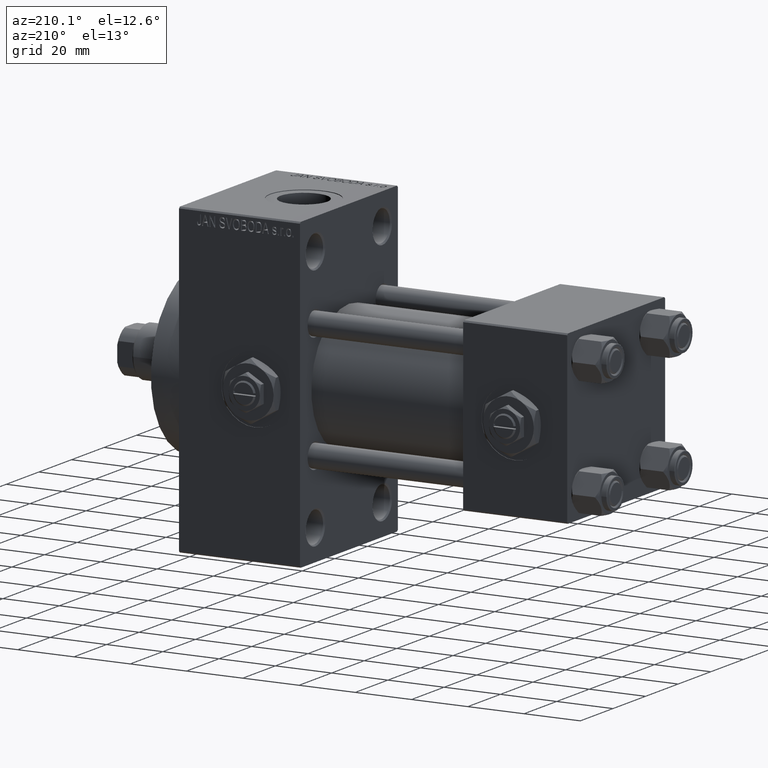
[diagram: clean part render]
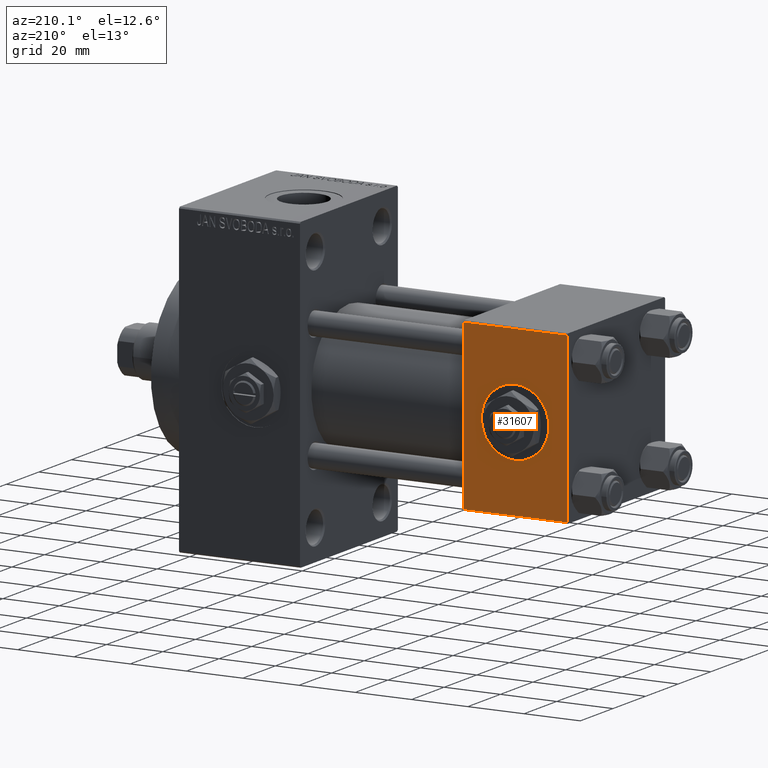
[diagram: same view with one face highlighted and labeled with its STEP entity id]
A machine part, auxiliary view. The second image highlights one B-rep face of the part: STEP entity #31607.
In plain terms, the highlighted planar face has unit normal (0, 1, 0).
Its self-contained STEP definition (entity closure, byte-faithful):
#8 = EDGE_CURVE ( 'NONE', #23171, #3015, #19385, .T. ) ;
#64 = PLANE ( 'NONE',  #15346 ) ;
#2081 = CARTESIAN_POINT ( 'NONE',  ( 37.00000000000000000, 29.99999999999999289, -29.50000000000000000 ) ) ;
#3015 = VERTEX_POINT ( 'NONE', #18023 ) ;
#3459 = CARTESIAN_POINT ( 'NONE',  ( 18.50000000000000000, 29.99999999999999289, 12.00000000000000178 ) ) ;
#3903 = DIRECTION ( 'NONE',  ( 0.000000000000000000, 1.000000000000000000, 0.000000000000000000 ) ) ;
#6861 = CARTESIAN_POINT ( 'NONE',  ( 0.000000000000000000, 29.99999999999999289, 30.00000000000000000 ) ) ;
#7208 = EDGE_CURVE ( 'NONE', #11190, #13145, #22501, .T. ) ;
#8090 = LINE ( 'NONE', #23304, #33094 ) ;
#8131 = CARTESIAN_POINT ( 'NONE',  ( 18.50000000000000000, 29.99999999999999289, 0.000000000000000000 ) ) ;
#10951 = CARTESIAN_POINT ( 'NONE',  ( 37.00000000000000000, 29.99999999999999289, 29.50000000000000000 ) ) ;
#11190 = VERTEX_POINT ( 'NONE', #2081 ) ;
#12686 = ORIENTED_EDGE ( 'NONE', *, *, #18132, .F. ) ;
#13145 = VERTEX_POINT ( 'NONE', #18369 ) ;
#14038 = EDGE_LOOP ( 'NONE', ( #21807, #12686 ) ) ;
#15088 = VERTEX_POINT ( 'NONE', #28833 ) ;
#15346 = AXIS2_PLACEMENT_3D ( 'NONE', #22752, #19250, #23251 ) ;
#15632 = DIRECTION ( 'NONE',  ( 0.000000000000000000, 0.000000000000000000, 1.000000000000000000 ) ) ;
#17138 = ORIENTED_EDGE ( 'NONE', *, *, #19194, .F. ) ;
#18023 = CARTESIAN_POINT ( 'NONE',  ( 18.50000000000000000, 29.99999999999999289, -12.00000000000000178 ) ) ;
#18132 = EDGE_CURVE ( 'NONE', #3015, #23171, #23081, .T. ) ;
#18315 = DIRECTION ( 'NONE',  ( 0.000000000000000000, 0.000000000000000000, -1.000000000000000000 ) ) ;
#18369 = CARTESIAN_POINT ( 'NONE',  ( 0.000000000000000000, 29.99999999999999289, -29.50000000000000000 ) ) ;
#18564 = AXIS2_PLACEMENT_3D ( 'NONE', #27122, #49047, #15632 ) ;
#18929 = LINE ( 'NONE', #10951, #36694 ) ;
#19194 = EDGE_CURVE ( 'NONE', #15088, #13145, #41023, .T. ) ;
#19250 = DIRECTION ( 'NONE',  ( -0.000000000000000000, 1.000000000000000000, 0.000000000000000000 ) ) ;
#19385 = CIRCLE ( 'NONE', #18564, 12.00000000000000178 ) ;
#19499 = FACE_BOUND ( 'NONE', #14038, .T. ) ;
#19947 = EDGE_CURVE ( 'NONE', #15088, #36318, #18929, .T. ) ;
#21807 = ORIENTED_EDGE ( 'NONE', *, *, #8, .F. ) ;
#22501 = LINE ( 'NONE', #37711, #41132 ) ;
#22752 = CARTESIAN_POINT ( 'NONE',  ( 37.00000000000000000, 29.99999999999999289, 30.00000000000000000 ) ) ;
#22891 = ORIENTED_EDGE ( 'NONE', *, *, #7208, .T. ) ;
#23081 = CIRCLE ( 'NONE', #27911, 12.00000000000000178 ) ;
#23171 = VERTEX_POINT ( 'NONE', #3459 ) ;
#23251 = DIRECTION ( 'NONE',  ( 0.000000000000000000, -0.000000000000000000, 1.000000000000000000 ) ) ;
#23304 = CARTESIAN_POINT ( 'NONE',  ( 37.00000000000000000, 29.99999999999999289, 30.00000000000000000 ) ) ;
#23345 = DIRECTION ( 'NONE',  ( 0.000000000000000000, 0.000000000000000000, 1.000000000000000000 ) ) ;
#27122 = CARTESIAN_POINT ( 'NONE',  ( 18.50000000000000000, 29.99999999999999289, 0.000000000000000000 ) ) ;
#27911 = AXIS2_PLACEMENT_3D ( 'NONE', #8131, #3903, #23345 ) ;
#28171 = EDGE_LOOP ( 'NONE', ( #41378, #22891, #17138, #36646 ) ) ;
#28833 = CARTESIAN_POINT ( 'NONE',  ( 0.000000000000000000, 29.99999999999999289, 29.50000000000000000 ) ) ;
#29774 = CARTESIAN_POINT ( 'NONE',  ( 37.00000000000000000, 29.99999999999999289, 29.50000000000000000 ) ) ;
#31607 = ADVANCED_FACE ( 'NONE', ( #19499, #41217 ), #64, .T. ) ;
#33094 = VECTOR ( 'NONE', #46490, 1000.000000000000000 ) ;
#36318 = VERTEX_POINT ( 'NONE', #29774 ) ;
#36646 = ORIENTED_EDGE ( 'NONE', *, *, #19947, .T. ) ;
#36694 = VECTOR ( 'NONE', #45129, 1000.000000000000000 ) ;
#37711 = CARTESIAN_POINT ( 'NONE',  ( 37.00000000000000000, 29.99999999999999289, -29.50000000000000000 ) ) ;
#38210 = DIRECTION ( 'NONE',  ( -1.000000000000000000, 0.000000000000000000, 0.000000000000000000 ) ) ;
#40192 = EDGE_CURVE ( 'NONE', #36318, #11190, #8090, .T. ) ;
#41023 = LINE ( 'NONE', #6861, #43844 ) ;
#41132 = VECTOR ( 'NONE', #38210, 1000.000000000000000 ) ;
#41217 = FACE_OUTER_BOUND ( 'NONE', #28171, .T. ) ;
#41378 = ORIENTED_EDGE ( 'NONE', *, *, #40192, .T. ) ;
#43844 = VECTOR ( 'NONE', #18315, 1000.000000000000000 ) ;
#45129 = DIRECTION ( 'NONE',  ( 1.000000000000000000, 0.000000000000000000, 0.000000000000000000 ) ) ;
#46490 = DIRECTION ( 'NONE',  ( 0.000000000000000000, 0.000000000000000000, -1.000000000000000000 ) ) ;
#49047 = DIRECTION ( 'NONE',  ( 0.000000000000000000, 1.000000000000000000, 0.000000000000000000 ) ) ;